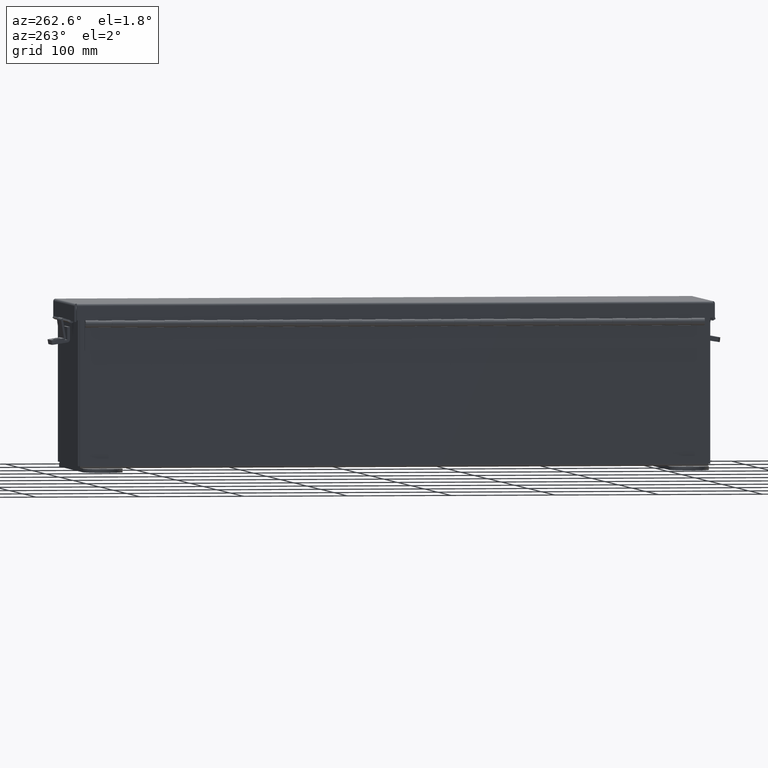
[diagram: clean part render]
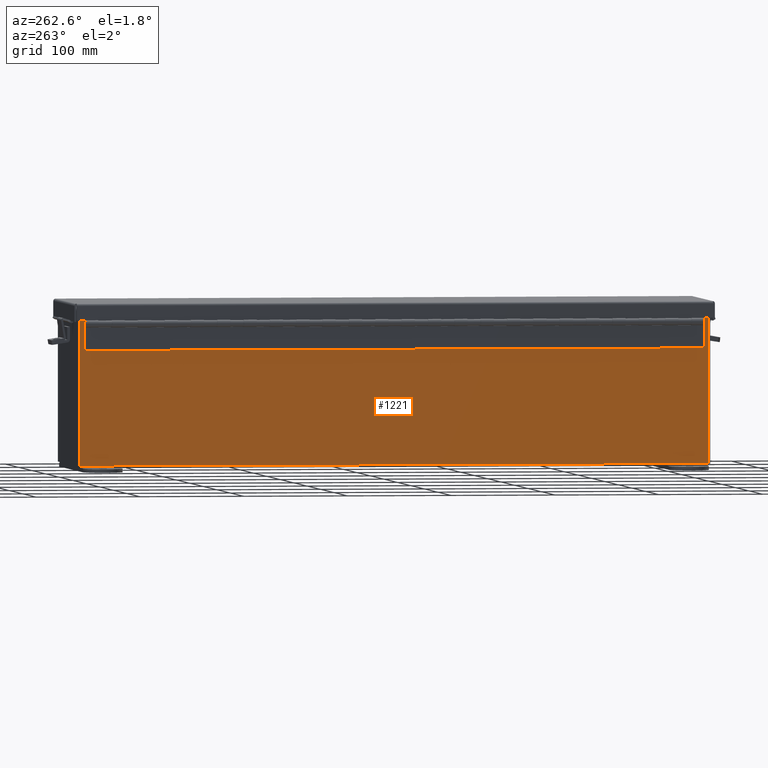
[diagram: same view with one face highlighted and labeled with its STEP entity id]
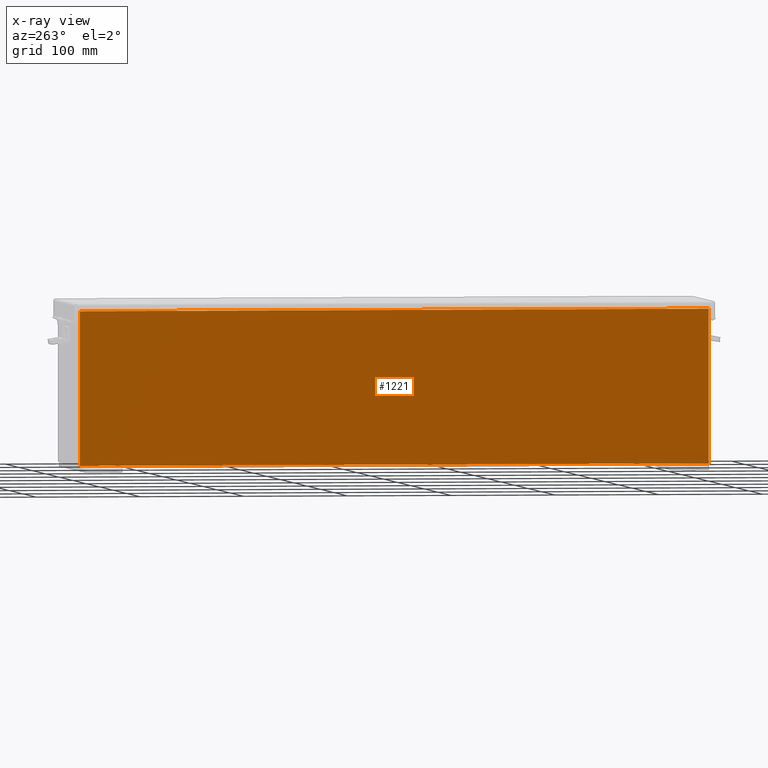
[diagram: x-ray of the same camera — body ghosted, the highlighted face saturated]
A machine part, auxiliary view. The second image highlights one B-rep face of the part: STEP entity #1221.
The next image is the same camera in x-ray: the body ghosted, the highlighted face saturated — about 0% of this face is hidden behind the body in this view.
In plain terms, the highlighted planar face has unit normal (1, 0, 0).
Its self-contained STEP definition (entity closure, byte-faithful):
#1041 = CARTESIAN_POINT ( 'NONE',  ( -3.000000000000020900, 11.92529999999999600, 5.837599999999999200 ) ) ;
#1221 = ADVANCED_FACE ( 'NONE', ( #20547 ), #2263, .F. ) ;
#2263 = PLANE ( 'NONE',  #7881 ) ;
#3272 = VERTEX_POINT ( 'NONE', #1041 ) ;
#3923 = VECTOR ( 'NONE', #3978, 39.37007874015748100 ) ;
#3978 = DIRECTION ( 'NONE',  ( -2.374631997337943600E-031, 1.000000000000000000, 6.872400678383597100E-017 ) ) ;
#4328 = CARTESIAN_POINT ( 'NONE',  ( -3.000000000000000900, -11.92530000000000000, -6.172269060685194900E-015 ) ) ;
#4681 = DIRECTION ( 'NONE',  ( 0.0000000000000000000, 1.000000000000000000, 0.0000000000000000000 ) ) ;
#5070 = EDGE_CURVE ( 'NONE', #10423, #14873, #13291, .T. ) ;
#5157 = ORIENTED_EDGE ( 'NONE', *, *, #15329, .T. ) ;
#5785 = DIRECTION ( 'NONE',  ( 3.455316574900958600E-015, 0.0000000000000000000, -1.000000000000000000 ) ) ;
#7519 = CARTESIAN_POINT ( 'NONE',  ( -3.000000000000000900, 11.92529999999999600, 0.01299999999999984300 ) ) ;
#7881 = AXIS2_PLACEMENT_3D ( 'NONE', #14558, #16328, #5785 ) ;
#8061 = CARTESIAN_POINT ( 'NONE',  ( -3.000000000000000900, 11.92529999999999600, -1.062859610035002400E-014 ) ) ;
#8119 = LINE ( 'NONE', #20459, #21048 ) ;
#8548 = ORIENTED_EDGE ( 'NONE', *, *, #5070, .F. ) ;
#10202 = CARTESIAN_POINT ( 'NONE',  ( -3.000000000000000900, -11.92529999999999600, 0.01299999999999820400 ) ) ;
#10423 = VERTEX_POINT ( 'NONE', #10202 ) ;
#11338 = LINE ( 'NONE', #8061, #20678 ) ;
#11542 = CARTESIAN_POINT ( 'NONE',  ( -3.000000000000000900, 11.92529999999999600, 0.01300000000000001300 ) ) ;
#13116 = DIRECTION ( 'NONE',  ( -3.455316574900958600E-015, 3.735477378271307500E-016, 1.000000000000000000 ) ) ;
#13183 = EDGE_CURVE ( 'NONE', #14215, #3272, #8119, .T. ) ;
#13291 = LINE ( 'NONE', #7519, #3923 ) ;
#13464 = EDGE_LOOP ( 'NONE', ( #15086, #5157, #8548, #17705 ) ) ;
#14215 = VERTEX_POINT ( 'NONE', #22180 ) ;
#14558 = CARTESIAN_POINT ( 'NONE',  ( -3.000000000000000900, 0.0000000000000000000, -1.062859610035002400E-014 ) ) ;
#14873 = VERTEX_POINT ( 'NONE', #11542 ) ;
#15063 = DIRECTION ( 'NONE',  ( 3.455316574900958600E-015, 0.0000000000000000000, -1.000000000000000000 ) ) ;
#15086 = ORIENTED_EDGE ( 'NONE', *, *, #13183, .T. ) ;
#15329 = EDGE_CURVE ( 'NONE', #3272, #14873, #11338, .T. ) ;
#16328 = DIRECTION ( 'NONE',  ( 1.000000000000000000, 0.0000000000000000000, 3.455316574900958600E-015 ) ) ;
#17705 = ORIENTED_EDGE ( 'NONE', *, *, #21111, .T. ) ;
#18102 = VECTOR ( 'NONE', #13116, 39.37007874015748100 ) ;
#18658 = LINE ( 'NONE', #4328, #18102 ) ;
#20459 = CARTESIAN_POINT ( 'NONE',  ( -3.000000000000020900, -11.92529999999999600, 5.837599999999999200 ) ) ;
#20547 = FACE_OUTER_BOUND ( 'NONE', #13464, .T. ) ;
#20678 = VECTOR ( 'NONE', #15063, 39.37007874015748100 ) ;
#21048 = VECTOR ( 'NONE', #4681, 39.37007874015748100 ) ;
#21111 = EDGE_CURVE ( 'NONE', #10423, #14215, #18658, .T. ) ;
#22180 = CARTESIAN_POINT ( 'NONE',  ( -3.000000000000020900, -11.92529999999999500, 5.837599999999999200 ) ) ;